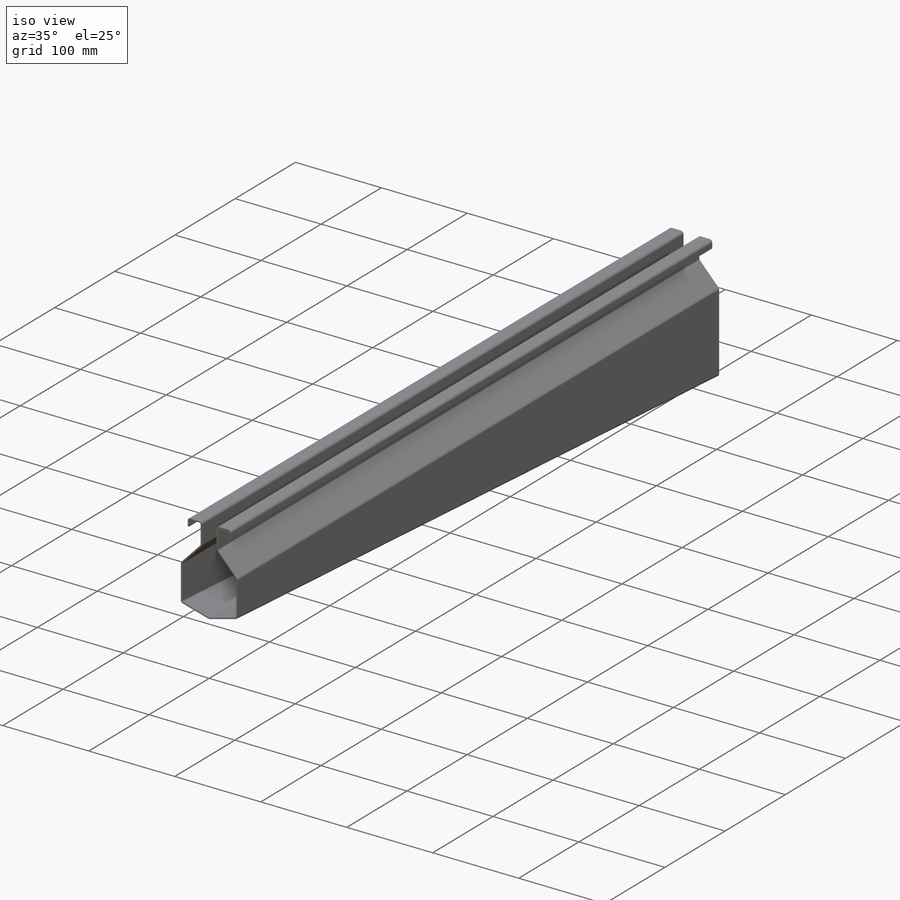
[diagram: iso view]
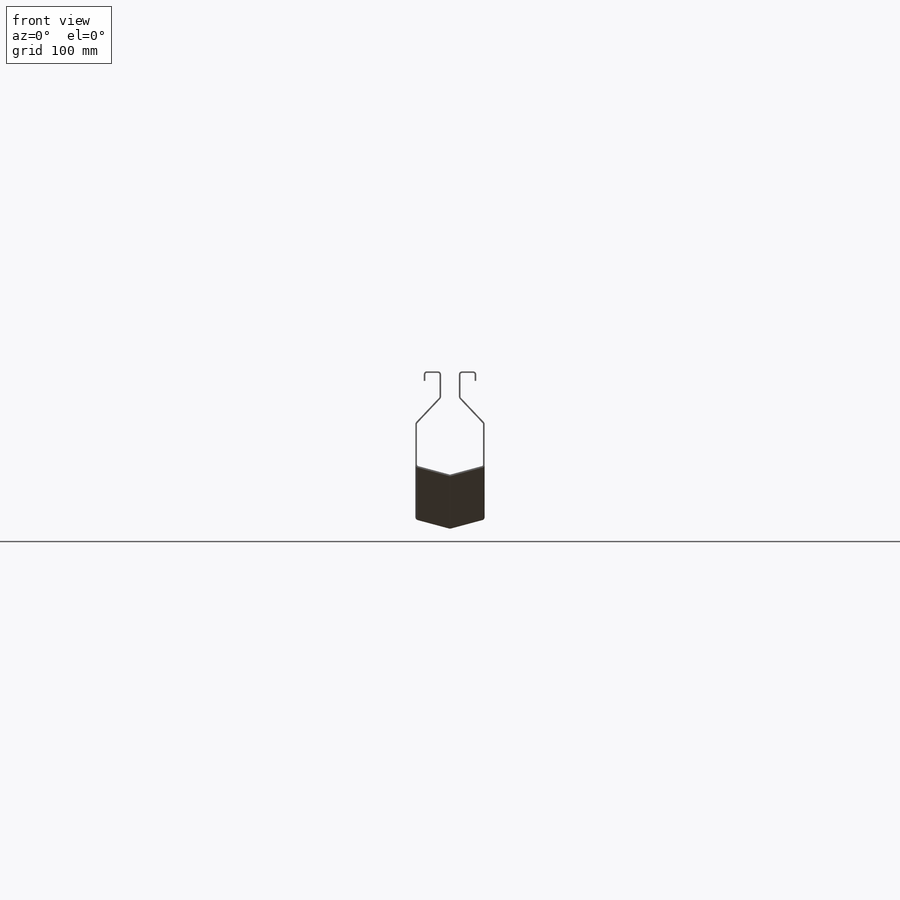
[diagram: front view]
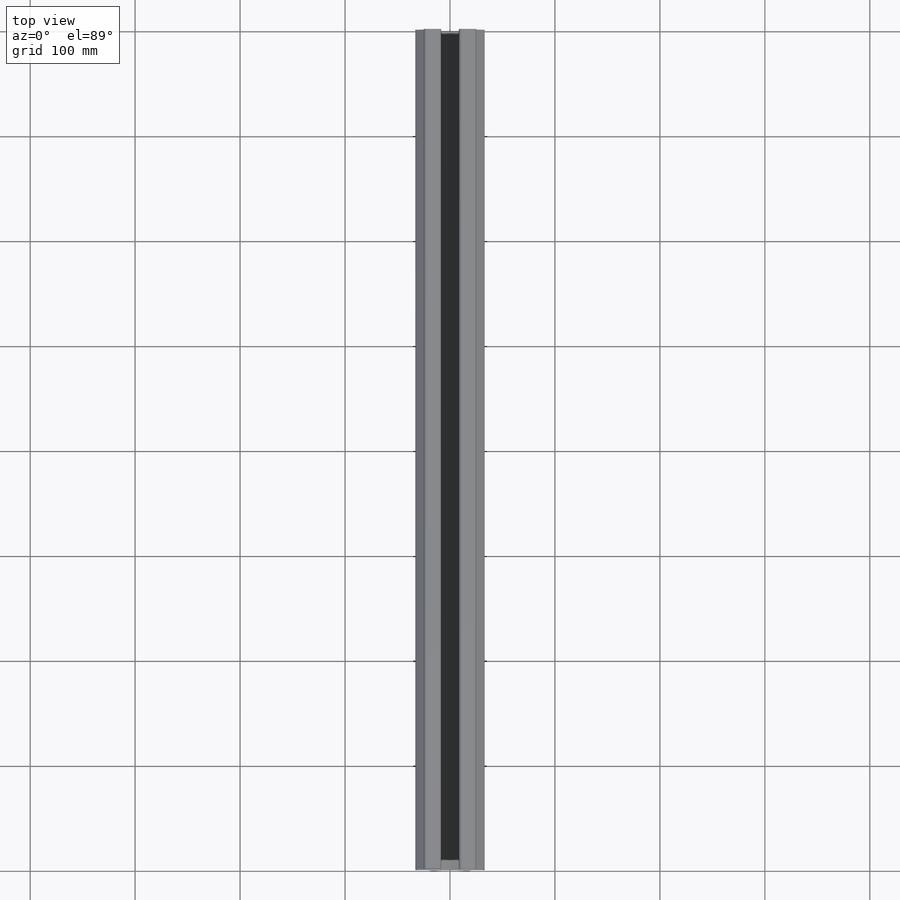
[diagram: top view]
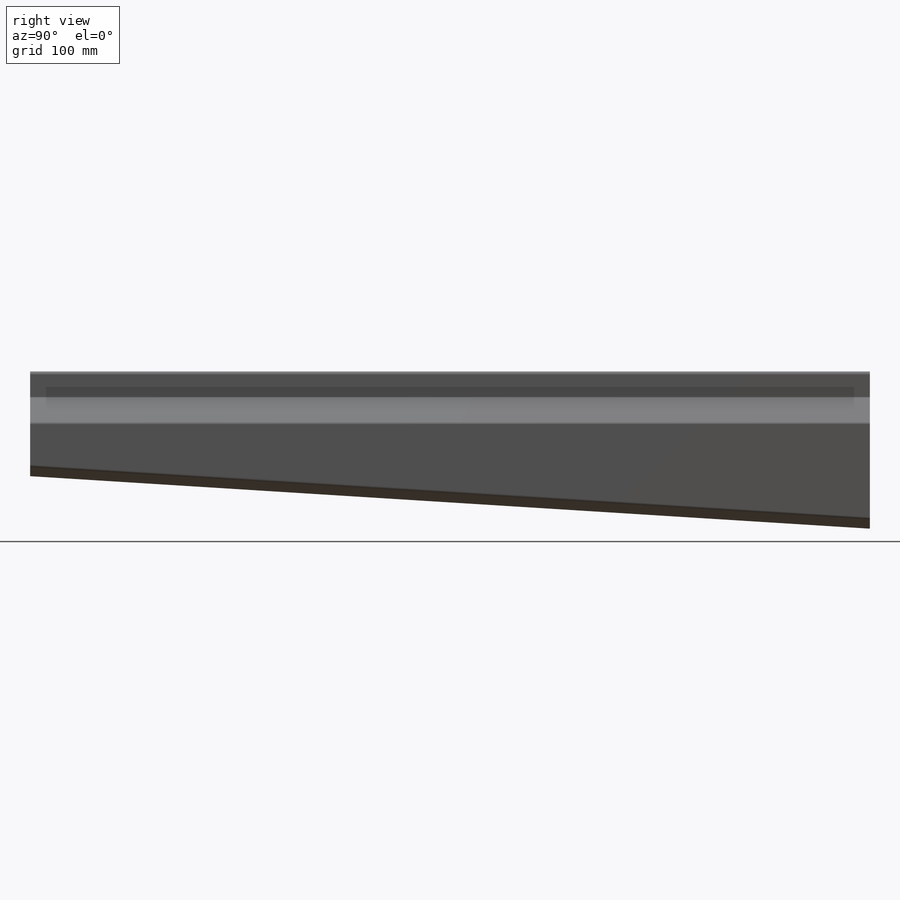
[diagram: right view]
SOLIDWORKS PART (.sldprt)
format: sldprt  version: not decoded by parser v0  size: 426,496 bytes
history: native  units: mm
features: sketch x6, plane x3, material x1, extrude x1, chamfer x1, cut_extrude x1, mirror x1, shell x1, sheet_metal_op x1 + 13 further entries (+8 scaffold rows collapsed; 1 parser-record rows omitted)
feature tree (38):
  scaffold x8  (default folders/planes/origin — collapsed)
  material  "Allgemein"
  plane  "Vorderansicht"
  plane  "Draufsicht"
  plane  "Seitenansicht"
  "Y-Achse"
  "Z-Achse"
  sketch  "Skizze2"  dims[D1=100.0mm D2=150.0mm D3=800.0mm]
  extrude  "Aufsatz-Linear austragen1"  Depth=66mm
  chamfer  "Fase1"  Distance=33mm Angle=15deg
  sketch  "Skizze3"  dims[D1=1.5mm D2=1.5mm D3=10.0mm D4=15.0mm]
  cut_extrude  "Schnitt-Linear austragen1"  [1 undecoded]
  mirror  "Spiegeln1"
  shell  "Wandung1"  Thickness=1.5mm
  sheet_metal_op  "Blech2"
  sketch  "Skizze-Winkel1"  dims[c1.Biegung-Winkel12=0.0 c1.D1=0.0mm c1.D4=~43.371154deg c1.D5=8.0 c1.D8=0.75mm c1.D9=0.75mm c1.Biegung-Winkel13=0.0 c2.D1=0.0mm c2.D4=~43.371154deg c2.D5=4.0 c2.D8=0.75mm c2.D9=0.75mm c2.Biegung-Winkel14=0.0 c3.D1=0.0mm c3.D4=30.0deg c3.D5=2.0 c3.D8=0.75mm c3.D9=0.75mm c3.Biegung-Winkel15=0.0 c4.D1=0.0mm c4.D4=75.0deg c4.D5=3.0 c4.D8=0.75mm c4.D9=0.75mm c4.Biegung-Winkel17=0.0 c5.D1=0.0mm c5.D4=90.0deg c5.D5=11.0 c5.D8=0.75mm c5.D9=0.75mm c5.Biegung-Winkel18=0.0 c6.D1=0.0mm c6.D4=90.0deg c6.D5=10.0 c6.D8=0.75mm c6.D9=0.75mm c6.Biegung-Winkel19=0.0 c7.D1=0.0mm c7.D4=~43.371154deg c7.D5=9.0 c7.D8=0.75mm c7.D9=0.75mm c7.Biegung-Winkel20=0.0 c8.D1=0.0mm c8.D4=90.0deg c8.D5=7.0 c8.D8=0.75mm c8.D9=0.75mm c8.Biegung-Winkel21=0.0 c9.D1=0.0mm c9.D4=90.0deg c9.D5=6.0 c9.D8=0.75mm c9.D9=0.75mm c9.Biegung-Winkel22=0.0 c10.D1=0.0mm c10.D4=~43.371154deg c10.D5=5.0 c10.D8=0.75mm c10.D9=0.75mm c11.D1=0.0mm]
  sketch  "Abwicklung-Skizze1"  dims[D1=0.0mm]
  "Abwicklung2"
  sketch  "Biegung-Linien2"
  sketch  "Rahmen2"
  "Abwickeln-<Biegung-Winkel13>1"
  "Abwickeln-<Biegung-Winkel14>1"
  "Abwickeln-<Biegung-Winkel15>1"
  "Abwickeln-<Biegung-Winkel16>1"
  "Abwickeln-<Biegung-Winkel17>1"
  "Abwickeln-<Biegung-Winkel18>1"
  "Abwickeln-<Biegung-Winkel19>1"
  "Abwickeln-<Biegung-Winkel20>1"
  "Abwickeln-<Biegung-Winkel21>1"
  "Abwickeln-<Biegung-Winkel22>1"
  parser-record x1  (decoder bookkeeping rows leaked as tree rows — omitted from the tree; the rows remain in map.json)
decode coverage: 7 of 12 modeling features carry decoded parameters; 13 rows unclassified (native names shown)
note: ~ marks probable driven/reference dimensions
note: 1 parameter value undecoded
note: suppression state not decoded; provenance and decode notes live in map.json
